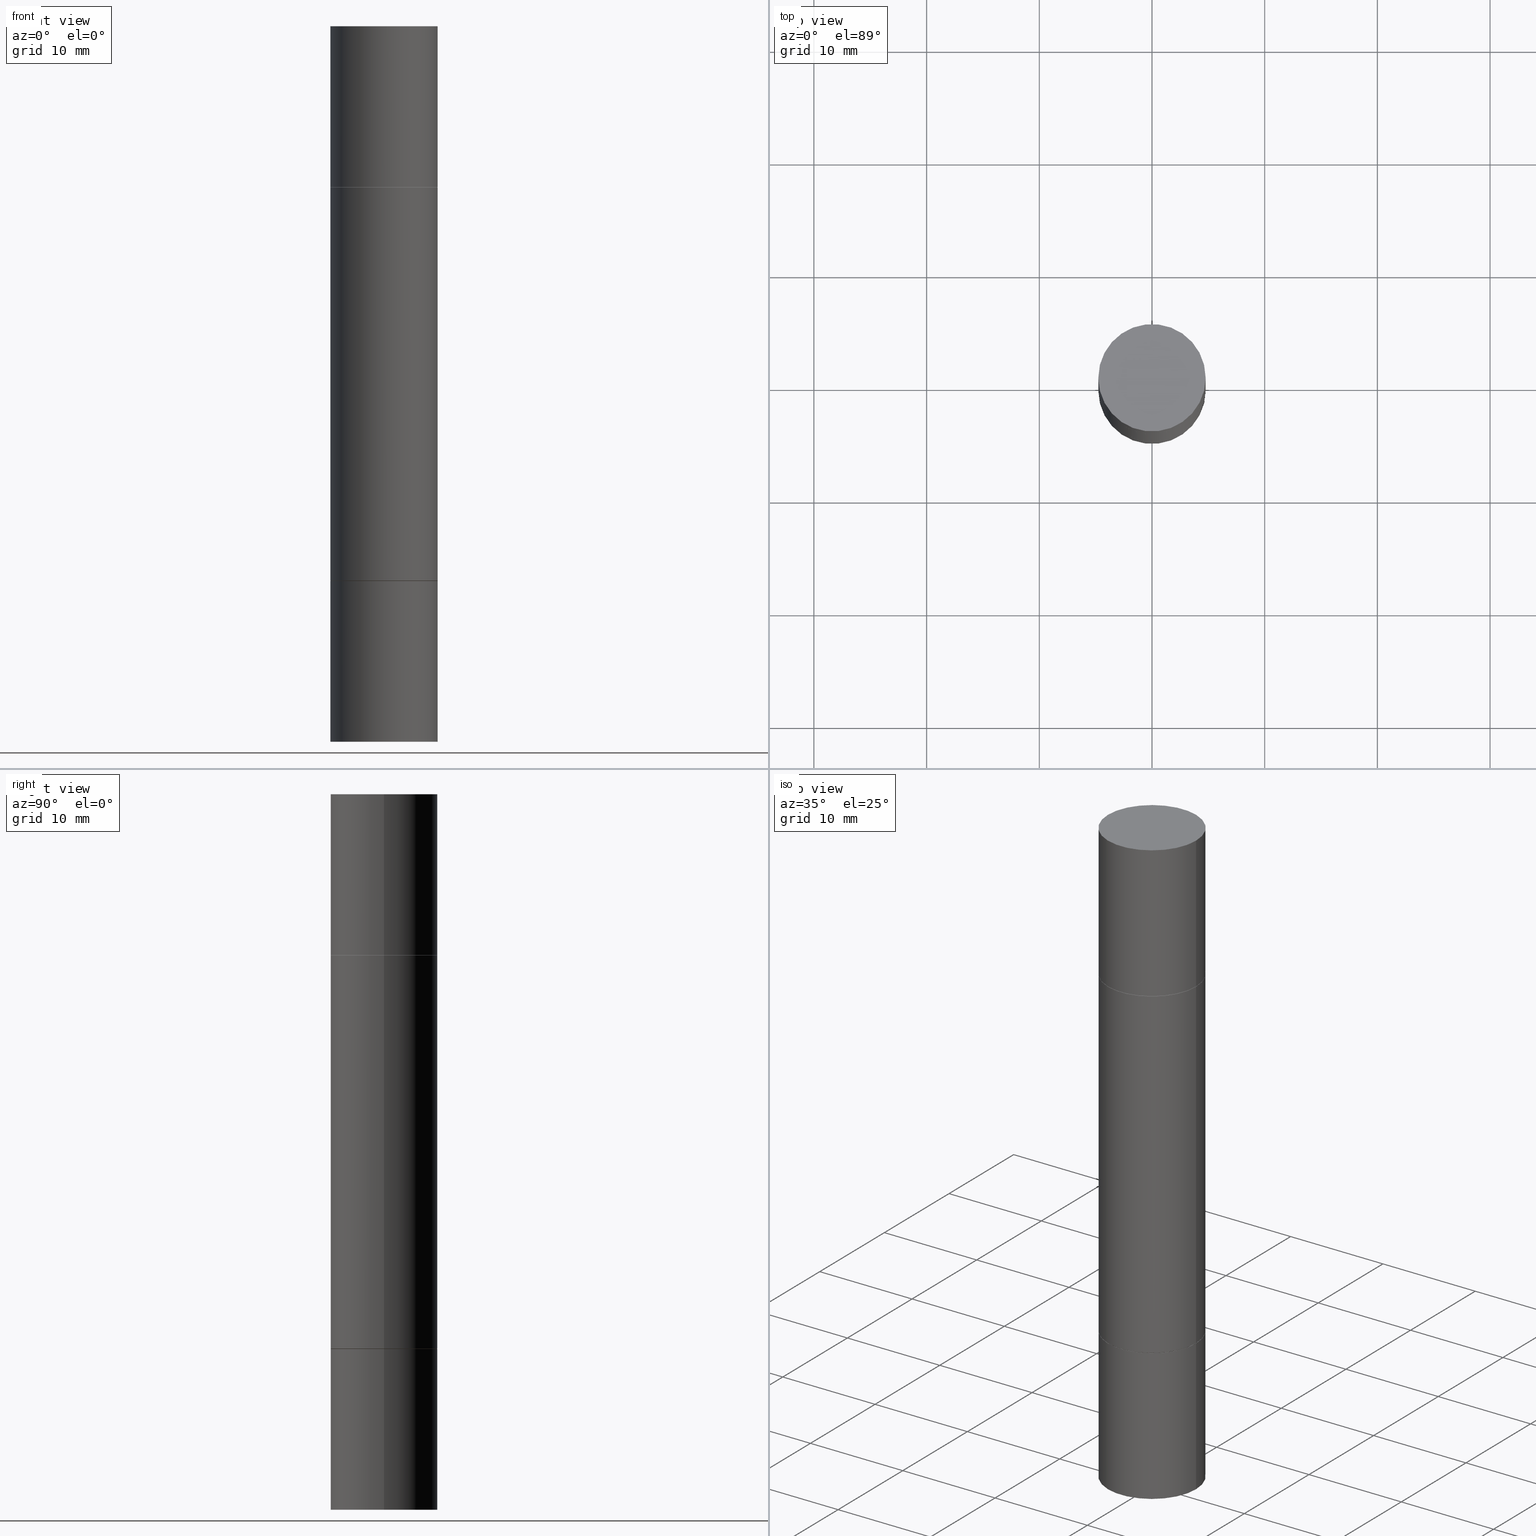
[diagram: canonical four-view strip — front | top / right | iso, engineering-drawing reading convention]
A machine part, canonical four-view strip (front | top / right | iso — engineering-drawing reading convention). The complete STEP part file that produces these views, byte-faithful:
ISO-10303-21;
HEADER;
FILE_DESCRIPTION (( 'STEP AP203' ),
    '1' );
FILE_NAME ('31333.STEP',
    '2024-03-04T15:41:38',
    ( '' ),
    ( '' ),
    'SwSTEP 2.0',
    'SolidWorks 2023',
    '' );
FILE_SCHEMA (( 'CONFIG_CONTROL_DESIGN' ));
ENDSEC;

DATA;
#1 = DIRECTION ( 'NONE',  ( -2.445468806185136877E-29, 3.491481338843145188E-15, 1.000000000000000000 ) ) ;
#2 = CIRCLE ( 'NONE', #232, 0.1875000000000000278 ) ;
#3 = EDGE_LOOP ( 'NONE', ( #544, #90, #595, #99 ) ) ;
#4 = APPROVAL ( #239, 'UNSPECIFIED' ) ;
#5 = DIRECTION ( 'NONE',  ( 2.445468806185136597E-29, 3.492890411551752677E-15, 1.000000000000000000 ) ) ;
#6 = VERTEX_POINT ( 'NONE', #543 ) ;
#7 = DIRECTION ( 'NONE',  ( 1.000000000000000000, -6.982962677686270655E-15, 0.000000000000000000 ) ) ;
#8 = DIRECTION ( 'NONE',  ( 1.000000000000000000, -6.982962677686266711E-15, 0.000000000000000000 ) ) ;
#9 = ORIENTED_EDGE ( 'NONE', *, *, #629, .F. ) ;
#10 = AXIS2_PLACEMENT_3D ( 'NONE', #573, #375, #309 ) ;
#11 = VECTOR ( 'NONE', #616, 39.37007874015748854 ) ;
#12 = ORIENTED_EDGE ( 'NONE', *, *, #74, .T. ) ;
#13 = PRODUCT_DEFINITION ( 'UNKNOWN', '', #157, #598 ) ;
#14 = EDGE_CURVE ( 'NONE', #410, #280, #380, .T. ) ;
#15 = DIRECTION ( 'NONE',  ( 2.438088387897960049E-29, -3.491481338843145188E-15, -1.000000000000000000 ) ) ;
#16 = ORIENTED_EDGE ( 'NONE', *, *, #437, .T. ) ;
#17 = AXIS2_PLACEMENT_3D ( 'NONE', #172, #412, #141 ) ;
#18 = CC_DESIGN_PERSON_AND_ORGANIZATION_ASSIGNMENT ( #343, #296, ( #157 ) ) ;
#19 = EDGE_CURVE ( 'NONE', #366, #313, #136, .T. ) ;
#20 = AXIS2_PLACEMENT_3D ( 'NONE', #676, #476, #112 ) ;
#21 = LINE ( 'NONE', #650, #374 ) ;
#22 = VERTEX_POINT ( 'NONE', #559 ) ;
#23 = LOCAL_TIME ( 10, 41, 38.00000000000000000, #655 ) ;
#24 = DIRECTION ( 'NONE',  ( 1.000000000000000000, -6.982962677686265922E-15, 4.876176775795935793E-29 ) ) ;
#25 = CARTESIAN_POINT ( 'NONE',  ( 4.739318546386794397E-29, -6.766490834678016045E-15, -1.937999999999999945 ) ) ;
#26 = ORIENTED_EDGE ( 'NONE', *, *, #19, .F. ) ;
#27 = CALENDAR_DATE ( 2024, 4, 3 ) ;
#28 = DIRECTION ( 'NONE',  ( 2.445468806185136597E-29, 3.492890411551752677E-15, 1.000000000000000000 ) ) ;
#29 = EDGE_CURVE ( 'NONE', #593, #514, #522, .T. ) ;
#30 = MECHANICAL_CONTEXT ( 'NONE', #117, 'mechanical' ) ;
#31 = CARTESIAN_POINT ( 'NONE',  ( -0.1875000000000000278, -7.444121313411457895E-15, -2.499999999999999556 ) ) ;
#32 = ORIENTED_EDGE ( 'NONE', *, *, #126, .F. ) ;
#33 = COORDINATED_UNIVERSAL_TIME_OFFSET ( 5, 0, .BEHIND. ) ;
#34 = DIRECTION ( 'NONE',  ( 1.000000000000000000, -6.982962677686265922E-15, 4.876176775795935793E-29 ) ) ;
#35 = ORIENTED_EDGE ( 'NONE', *, *, #437, .F. ) ;
#36 = ORIENTED_EDGE ( 'NONE', *, *, #41, .T. ) ;
#37 = CARTESIAN_POINT ( 'NONE',  ( -0.1875000000000000278, -6.415329461342752645E-15, -1.937999999999999945 ) ) ;
#38 = DIRECTION ( 'NONE',  ( 1.000000000000000000, -6.982962677686266711E-15, 0.000000000000000000 ) ) ;
#39 = AXIS2_PLACEMENT_3D ( 'NONE', #530, #151, #667 ) ;
#40 = ORGANIZATION ( 'UNSPECIFIED', 'UNSPECIFIED', '' ) ;
#41 = EDGE_CURVE ( 'NONE', #503, #410, #618, .T. ) ;
#42 = ORIENTED_EDGE ( 'NONE', *, *, #554, .F. ) ;
#43 = ADVANCED_FACE ( 'NONE', ( #87 ), #304, .T. ) ;
#44 = FACE_OUTER_BOUND ( 'NONE', #228, .T. ) ;
#45 = PLANE ( 'NONE',  #407 ) ;
#46 = CARTESIAN_POINT ( 'NONE',  ( -0.1875000000000000278, 3.066025098218802702E-16, 5.463695987328561936E-16 ) ) ;
#47 = CARTESIAN_POINT ( 'NONE',  ( -0.1875000000000000278, -6.783925862357143136E-16, -0.5629999999999997229 ) ) ;
#48 = SHAPE_DEFINITION_REPRESENTATION ( #606, #435 ) ;
#49 = DIRECTION ( 'NONE',  ( 2.445468806185136597E-29, 3.492890411551752677E-15, 1.000000000000000000 ) ) ;
#50 = CARTESIAN_POINT ( 'NONE',  ( 4.736873077580609355E-29, -1.964735960817877172E-15, -0.5629999999999997229 ) ) ;
#51 = AXIS2_PLACEMENT_3D ( 'NONE', #384, #166, #226 ) ;
#52 = CIRCLE ( 'NONE', #613, 0.1875000000000000278 ) ;
#53 = FACE_OUTER_BOUND ( 'NONE', #521, .T. ) ;
#54 = EDGE_LOOP ( 'NONE', ( #452, #568 ) ) ;
#55 = CARTESIAN_POINT ( 'NONE',  ( 4.739318546386794397E-29, -1.961243070406324635E-15, -0.5619999999999996110 ) ) ;
#56 = ORIENTED_EDGE ( 'NONE', *, *, #502, .F. ) ;
#57 = DIRECTION ( 'NONE',  ( -2.445468806185136597E-29, -3.492890411551752677E-15, -1.000000000000000000 ) ) ;
#58 = CC_DESIGN_PERSON_AND_ORGANIZATION_ASSIGNMENT ( #403, #189, ( #157 ) ) ;
#59 = PLANE ( 'NONE',  #382 ) ;
#60 = CLOSED_SHELL ( 'NONE', ( #142, #337, #458, #388, #389, #218, #638, #328 ) ) ;
#61 = AXIS2_PLACEMENT_3D ( 'NONE', #379, #325, #7 ) ;
#62 = EDGE_CURVE ( 'NONE', #161, #648, #591, .T. ) ;
#63 = ORIENTED_EDGE ( 'NONE', *, *, #270, .F. ) ;
#64 = DIRECTION ( 'NONE',  ( -1.000000000000000000, 6.982962677686265922E-15, -4.876176775795935793E-29 ) ) ;
#65 = ADVANCED_FACE ( 'NONE', ( #44 ), #336, .T. ) ;
#66 = ORIENTED_EDGE ( 'NONE', *, *, #584, .F. ) ;
#67 = AXIS2_PLACEMENT_3D ( 'NONE', #300, #393, #129 ) ;
#68 = VECTOR ( 'NONE', #1, 39.37007874015748143 ) ;
#69 = PLANE ( 'NONE',  #456 ) ;
#70 = ORIENTED_EDGE ( 'NONE', *, *, #434, .T. ) ;
#71 = ADVANCED_FACE ( 'NONE', ( #256 ), #179, .T. ) ;
#72 = DIRECTION ( 'NONE',  ( 2.445468806185136597E-29, 3.492890411551752677E-15, 1.000000000000000000 ) ) ;
#73 = EDGE_CURVE ( 'NONE', #275, #635, #200, .T. ) ;
#74 = EDGE_CURVE ( 'NONE', #490, #499, #252, .T. ) ;
#75 = PERSON_AND_ORGANIZATION_ROLE ( 'design_owner' ) ;
#76 = CARTESIAN_POINT ( 'NONE',  ( -0.1864999999999999714, -5.441328632485429205E-15, -1.937999999999999945 ) ) ;
#77 = DIRECTION ( 'NONE',  ( -1.000000000000000000, 6.982962677686265922E-15, -9.839502134516470631E-33 ) ) ;
#78 = CARTESIAN_POINT ( 'NONE',  ( 4.739318546386794397E-29, -1.961243070406324635E-15, -0.5619999999999996110 ) ) ;
#79 = AXIS2_PLACEMENT_3D ( 'NONE', #344, #549, #614 ) ;
#80 = DIRECTION ( 'NONE',  ( 1.000000000000000000, -6.982962677686270655E-15, 0.000000000000000000 ) ) ;
#81 = CONICAL_SURFACE ( 'NONE', #123, 0.1864999999999999714, 0.7853981633974311816 ) ;
#82 = VERTEX_POINT ( 'NONE', #445 ) ;
#83 = DATE_AND_TIME ( #27, #324 ) ;
#84 = LOCAL_TIME ( 10, 41, 38.00000000000000000, #134 ) ;
#85 = CYLINDRICAL_SURFACE ( 'NONE', #633, 0.1874999999999999167 ) ;
#86 = APPROVAL_STATUS ( 'not_yet_approved' ) ;
#87 = FACE_OUTER_BOUND ( 'NONE', #260, .T. ) ;
#88 = CARTESIAN_POINT ( 'NONE',  ( 0.000000000000000000, -8.730464687993621641E-15, -2.499999999999999556 ) ) ;
#89 = FACE_OUTER_BOUND ( 'NONE', #460, .T. ) ;
#90 = ORIENTED_EDGE ( 'NONE', *, *, #29, .T. ) ;
#91 = DIRECTION ( 'NONE',  ( -2.445468806185136597E-29, -3.492890411551752677E-15, -1.000000000000000000 ) ) ;
#92 = DIRECTION ( 'NONE',  ( -2.445468806185136597E-29, -3.492890411551752677E-15, -1.000000000000000000 ) ) ;
#93 = ADVANCED_FACE ( 'NONE', ( #400 ), #651, .T. ) ;
#94 = ADVANCED_FACE ( 'NONE', ( #97 ), #381, .T. ) ;
#95 = ORIENTED_EDGE ( 'NONE', *, *, #601, .F. ) ;
#96 = CLOSED_SHELL ( 'NONE', ( #65, #185, #652, #93 ) ) ;
#97 = FACE_OUTER_BOUND ( 'NONE', #138, .T. ) ;
#98 = DIRECTION ( 'NONE',  ( -1.000000000000000000, 6.982962677686265922E-15, -9.839502134516470631E-33 ) ) ;
#99 = ORIENTED_EDGE ( 'NONE', *, *, #587, .F. ) ;
#100 = LINE ( 'NONE', #107, #169 ) ;
#101 = EDGE_LOOP ( 'NONE', ( #331, #465, #660, #464 ) ) ;
#102 = CARTESIAN_POINT ( 'NONE',  ( 0.1864999999999999714, -3.263565609794813629E-15, -0.5619999999999996110 ) ) ;
#103 = ORIENTED_EDGE ( 'NONE', *, *, #582, .T. ) ;
#104 = DIRECTION ( 'NONE',  ( 1.000000000000000000, -6.982962677686269077E-15, 0.000000000000000000 ) ) ;
#105 = VECTOR ( 'NONE', #419, 39.37007874015748143 ) ;
#106 = ORIENTED_EDGE ( 'NONE', *, *, #643, .F. ) ;
#107 = CARTESIAN_POINT ( 'NONE',  ( -0.1875000000000000278, 1.332267629550188046E-15, -9.223003294227947991E-30 ) ) ;
#108 = AXIS2_PLACEMENT_3D ( 'NONE', #25, #238, #182 ) ;
#109 =( GEOMETRIC_REPRESENTATION_CONTEXT ( 3 ) GLOBAL_UNCERTAINTY_ASSIGNED_CONTEXT ( ( #183 ) ) GLOBAL_UNIT_ASSIGNED_CONTEXT ( ( #302, #193, #510 ) ) REPRESENTATION_CONTEXT ( 'NONE', 'WORKASPACE' ) );
#110 = CARTESIAN_POINT ( 'NONE',  ( 0.1875000000000000278, -1.309305502066175008E-15, 9.142831454617381013E-30 ) ) ;
#111 = MANIFOLD_SOLID_BREP ( 'Mirror1[4]', #659 ) ;
#112 = DIRECTION ( 'NONE',  ( 1.000000000000000000, -6.982962677686269077E-15, 0.000000000000000000 ) ) ;
#113 = DIMENSIONAL_EXPONENTS ( 1.000000000000000000, 0.000000000000000000, 0.000000000000000000, 0.000000000000000000, 0.000000000000000000, 0.000000000000000000, 0.000000000000000000 ) ;
#114 = CIRCLE ( 'NONE', #586, 0.1864999999999999714 ) ;
#115 = CARTESIAN_POINT ( 'NONE',  ( 6.113672015462842613E-29, 1.761340885760521790E-18, 5.463695987328526437E-16 ) ) ;
#116 = ADVANCED_FACE ( 'NONE', ( #454 ), #85, .T. ) ;
#117 = APPLICATION_CONTEXT ( 'configuration controlled 3d designs of mechanical parts and assemblies' ) ;
#118 = ORIENTED_EDGE ( 'NONE', *, *, #617, .F. ) ;
#119 = FACE_OUTER_BOUND ( 'NONE', #547, .T. ) ;
#120 = ORIENTED_EDGE ( 'NONE', *, *, #181, .T. ) ;
#121 = DIRECTION ( 'NONE',  ( 1.000000000000000000, -6.982962677686266711E-15, 0.000000000000000000 ) ) ;
#122 = AXIS2_PLACEMENT_3D ( 'NONE', #461, #545, #77 ) ;
#123 = AXIS2_PLACEMENT_3D ( 'NONE', #78, #92, #241 ) ;
#124 = CARTESIAN_POINT ( 'NONE',  ( 6.113672015462842613E-29, 1.761340885760521790E-18, 5.463695987328526437E-16 ) ) ;
#125 = VECTOR ( 'NONE', #170, 39.37007874015748143 ) ;
#126 = EDGE_CURVE ( 'NONE', #371, #410, #2, .T. ) ;
#127 = CC_DESIGN_PERSON_AND_ORGANIZATION_ASSIGNMENT ( #186, #75, ( #175 ) ) ;
#128 = CARTESIAN_POINT ( 'NONE',  ( 4.739318546386794397E-29, -6.766490834678016045E-15, -1.937999999999999945 ) ) ;
#129 = DIRECTION ( 'NONE',  ( 1.000000000000000000, -6.982962677686266711E-15, 0.000000000000000000 ) ) ;
#130 = PERSON_AND_ORGANIZATION ( #391, #40 ) ;
#131 = FACE_OUTER_BOUND ( 'NONE', #192, .T. ) ;
#132 = CARTESIAN_POINT ( 'NONE',  ( 0.000000000000000000, -8.730464687993621641E-15, -2.499999999999999556 ) ) ;
#133 = CARTESIAN_POINT ( 'NONE',  ( 4.739318546386794397E-29, -6.766490834678016045E-15, -1.937999999999999945 ) ) ;
#134 = COORDINATED_UNIVERSAL_TIME_OFFSET ( 5, 0, .BEHIND. ) ;
#135 = DIRECTION ( 'NONE',  ( 1.000000000000000000, -6.982962677686266711E-15, 0.000000000000000000 ) ) ;
#136 = CIRCLE ( 'NONE', #17, 0.1875000000000000278 ) ;
#137 = CIRCLE ( 'NONE', #646, 0.1875000000000000278 ) ;
#138 = EDGE_LOOP ( 'NONE', ( #35, #36, #536, #66 ) ) ;
#139 = PERSON_AND_ORGANIZATION ( #391, #40 ) ;
#140 = CIRCLE ( 'NONE', #647, 0.1875000000000000278 ) ;
#141 = DIRECTION ( 'NONE',  ( 1.000000000000000000, -6.982962677686266711E-15, 0.000000000000000000 ) ) ;
#142 = ADVANCED_FACE ( 'NONE', ( #404 ), #531, .T. ) ;
#143 = ORIENTED_EDGE ( 'NONE', *, *, #230, .T. ) ;
#144 = CARTESIAN_POINT ( 'NONE',  ( 0.1875000000000000278, -1.307544161180414563E-15, 5.463695987328526437E-16 ) ) ;
#145 = CARTESIAN_POINT ( 'NONE',  ( -0.1864999999999999714, -6.817601938219341781E-16, -0.5619999999999996110 ) ) ;
#146 = AXIS2_PLACEMENT_3D ( 'NONE', #414, #636, #159 ) ;
#147 = DIRECTION ( 'NONE',  ( 1.000000000000000000, -6.982962677686265922E-15, 4.876176775795935793E-29 ) ) ;
#148 = CIRCLE ( 'NONE', #551, 0.1875000000000000278 ) ;
#149 = ADVANCED_FACE ( 'NONE', ( #610 ), #556, .T. ) ;
#150 = DIRECTION ( 'NONE',  ( -0.000000000000000000, -3.492185875197449130E-15, -1.000000000000000000 ) ) ;
#151 = DIRECTION ( 'NONE',  ( -2.445468806185136597E-29, -3.492890411551752677E-15, -1.000000000000000000 ) ) ;
#152 = ORIENTED_EDGE ( 'NONE', *, *, #73, .F. ) ;
#153 = FACE_OUTER_BOUND ( 'NONE', #208, .T. ) ;
#154 = CIRCLE ( 'NONE', #523, 0.1875000000000000278 ) ;
#155 = VERTEX_POINT ( 'NONE', #144 ) ;
#156 = DIRECTION ( 'NONE',  ( 1.000000000000000000, -6.982962677686269077E-15, 0.000000000000000000 ) ) ;
#157 = PRODUCT_DEFINITION_FORMATION_WITH_SPECIFIED_SOURCE ( 'ANY', '', #175, .NOT_KNOWN. ) ;
#158 = ADVANCED_FACE ( 'NONE', ( #53 ), #59, .F. ) ;
#159 = DIRECTION ( 'NONE',  ( 0.000000000000000000, 1.000000000000000000, -2.913971193241881950E-15 ) ) ;
#160 = DIRECTION ( 'NONE',  ( 1.000000000000000000, -6.982962677686265922E-15, 0.000000000000000000 ) ) ;
#161 = VERTEX_POINT ( 'NONE', #206 ) ;
#162 = EDGE_CURVE ( 'NONE', #82, #155, #137, .T. ) ;
#163 = VECTOR ( 'NONE', #507, 39.37007874015748143 ) ;
#164 = AXIS2_PLACEMENT_3D ( 'NONE', #665, #187, #248 ) ;
#165 = ORIENTED_EDGE ( 'NONE', *, *, #629, .T. ) ;
#166 = DIRECTION ( 'NONE',  ( -2.445468806185136597E-29, 3.491481338843145583E-15, 1.000000000000000000 ) ) ;
#167 = ORIENTED_EDGE ( 'NONE', *, *, #587, .T. ) ;
#168 =( LENGTH_UNIT ( ) NAMED_UNIT ( * ) SI_UNIT ( $, .METRE. ) );
#169 = VECTOR ( 'NONE', #317, 39.37007874015748143 ) ;
#170 = DIRECTION ( 'NONE',  ( -2.445468806185136877E-29, -3.492890411551753071E-15, -1.000000000000000000 ) ) ;
#171 = AXIS2_PLACEMENT_3D ( 'NONE', #340, #439, #645 ) ;
#172 = CARTESIAN_POINT ( 'NONE',  ( 4.739318546386794397E-29, -1.961243070406324635E-15, -0.5619999999999996110 ) ) ;
#173 = CARTESIAN_POINT ( 'NONE',  ( 6.113672015462842613E-29, -8.728703347107864943E-15, -2.500000000000000000 ) ) ;
#174 = EDGE_CURVE ( 'NONE', #299, #490, #249, .T. ) ;
#175 = PRODUCT ( '31333', '31333', '', ( #30 ) ) ;
#176 = DATE_AND_TIME ( #402, #664 ) ;
#177 = LINE ( 'NONE', #658, #674 ) ;
#178 = DATE_TIME_ROLE ( 'creation_date' ) ;
#179 = PLANE ( 'NONE',  #122 ) ;
#180 = APPROVAL_ROLE ( '' ) ;
#181 = EDGE_CURVE ( 'NONE', #308, #623, #532, .T. ) ;
#182 = DIRECTION ( 'NONE',  ( 1.000000000000000000, -6.982962677686266711E-15, 0.000000000000000000 ) ) ;
#183 = UNCERTAINTY_MEASURE_WITH_UNIT (LENGTH_MEASURE( 1.000000000000000082E-05 ), #302, 'distance_accuracy_value', 'NONE');
#184 = CARTESIAN_POINT ( 'NONE',  ( -0.1864999999999999714, -6.817601938219341781E-16, -0.5619999999999996110 ) ) ;
#185 = ADVANCED_FACE ( 'NONE', ( #588 ), #69, .T. ) ;
#186 = PERSON_AND_ORGANIZATION ( #391, #40 ) ;
#187 = DIRECTION ( 'NONE',  ( 2.438088387897960049E-29, -3.491481338843145188E-15, -1.000000000000000000 ) ) ;
#188 = AXIS2_PLACEMENT_3D ( 'NONE', #477, #274, #257 ) ;
#189 = PERSON_AND_ORGANIZATION_ROLE ( 'creator' ) ;
#190 = DIRECTION ( 'NONE',  ( -1.000000000000000000, 6.982962677686265922E-15, -9.839502134516470631E-33 ) ) ;
#191 = ORIENTED_EDGE ( 'NONE', *, *, #582, .F. ) ;
#192 = EDGE_LOOP ( 'NONE', ( #262, #26 ) ) ;
#193 =( NAMED_UNIT ( * ) PLANE_ANGLE_UNIT ( ) SI_UNIT ( $, .RADIAN. ) );
#194 = LINE ( 'NONE', #76, #11 ) ;
#195 = DIRECTION ( 'NONE',  ( -2.445468806185136597E-29, 3.491481338843145583E-15, 1.000000000000000000 ) ) ;
#196 = CARTESIAN_POINT ( 'NONE',  ( 0.1875000000000000278, -8.072304855405348046E-15, -1.936999999999999833 ) ) ;
#197 = DIRECTION ( 'NONE',  ( -2.438088387897960049E-29, 3.491481338843145188E-15, 1.000000000000000000 ) ) ;
#198 = FACE_OUTER_BOUND ( 'NONE', #608, .T. ) ;
#199 = ORIENTED_EDGE ( 'NONE', *, *, #643, .T. ) ;
#200 = CIRCLE ( 'NONE', #565, 0.1875000000000000278 ) ;
#201 = CIRCLE ( 'NONE', #592, 0.1864999999999999714 ) ;
#202 = DIRECTION ( 'NONE',  ( 1.000000000000000000, -6.982962677686266711E-15, 0.000000000000000000 ) ) ;
#203 = CIRCLE ( 'NONE', #108, 0.1875000000000000278 ) ;
#204 = ORIENTED_EDGE ( 'NONE', *, *, #675, .T. ) ;
#205 = CARTESIAN_POINT ( 'NONE',  ( -0.1864999999999999714, -6.800763900288241472E-16, -0.5619999999999996110 ) ) ;
#206 = CARTESIAN_POINT ( 'NONE',  ( 0.1875000000000000278, -8.075796336744191053E-15, -1.937999999999999945 ) ) ;
#207 = FACE_OUTER_BOUND ( 'NONE', #101, .T. ) ;
#208 = EDGE_LOOP ( 'NONE', ( #527, #12, #320, #118 ) ) ;
#209 = CARTESIAN_POINT ( 'NONE',  ( 3.056836007731420185E-29, -4.364351673553931682E-15, -1.249999999999999778 ) ) ;
#210 = ORIENTED_EDGE ( 'NONE', *, *, #428, .F. ) ;
#211 = ORIENTED_EDGE ( 'NONE', *, *, #594, .T. ) ;
#212 = DIRECTION ( 'NONE',  ( -2.445468806185136597E-29, -3.492890411551752677E-15, -1.000000000000000000 ) ) ;
#213 = EDGE_CURVE ( 'NONE', #490, #299, #114, .T. ) ;
#214 = EDGE_CURVE ( 'NONE', #411, #499, #291, .T. ) ;
#215 = CIRCLE ( 'NONE', #146, 0.1874999999999999167 ) ;
#216 = CYLINDRICAL_SURFACE ( 'NONE', #485, 0.1875000000000000278 ) ;
#217 = AXIS2_PLACEMENT_3D ( 'NONE', #596, #286, #557 ) ;
#218 = ADVANCED_FACE ( 'NONE', ( #222 ), #640, .T. ) ;
#219 = CARTESIAN_POINT ( 'NONE',  ( 4.739318546386794397E-29, -1.961243070406324635E-15, -0.5619999999999996110 ) ) ;
#220 = EDGE_CURVE ( 'NONE', #635, #275, #672, .T. ) ;
#221 = ORIENTED_EDGE ( 'NONE', *, *, #415, .T. ) ;
#222 = FACE_OUTER_BOUND ( 'NONE', #369, .T. ) ;
#223 = VECTOR ( 'NONE', #459, 39.37007874015748143 ) ;
#224 = AXIS2_PLACEMENT_3D ( 'NONE', #124, #487, #160 ) ;
#225 = ORIENTED_EDGE ( 'NONE', *, *, #502, .T. ) ;
#226 = DIRECTION ( 'NONE',  ( 1.000000000000000000, -6.982962677686266711E-15, 0.000000000000000000 ) ) ;
#227 = CARTESIAN_POINT ( 'NONE',  ( -0.1875000000000000278, -7.444121313411457895E-15, -2.499999999999999556 ) ) ;
#228 = EDGE_LOOP ( 'NONE', ( #441, #627, #574, #258 ) ) ;
#229 = CARTESIAN_POINT ( 'NONE',  ( 0.1875000000000000278, -3.270548572472500038E-15, -0.5619999999999996110 ) ) ;
#230 = EDGE_CURVE ( 'NONE', #313, #366, #154, .T. ) ;
#231 = EDGE_LOOP ( 'NONE', ( #244, #305, #390, #438 ) ) ;
#232 = AXIS2_PLACEMENT_3D ( 'NONE', #356, #28, #240 ) ;
#233 = LINE ( 'NONE', #552, #443 ) ;
#234 = CONICAL_SURFACE ( 'NONE', #217, 0.1864999999999999714, 0.7853981633974311816 ) ;
#235 = DIRECTION ( 'NONE',  ( -2.445468806185136597E-29, 3.491481338843145583E-15, 1.000000000000000000 ) ) ;
#236 = DIRECTION ( 'NONE',  ( -2.445468806185136597E-29, 3.491481338843145583E-15, 1.000000000000000000 ) ) ;
#237 = PERSON_AND_ORGANIZATION_ROLE ( 'creator' ) ;
#238 = DIRECTION ( 'NONE',  ( -2.445468806185136597E-29, 3.491481338843145583E-15, 1.000000000000000000 ) ) ;
#239 = APPROVAL_STATUS ( 'not_yet_approved' ) ;
#240 = DIRECTION ( 'NONE',  ( 1.000000000000000000, -6.982962677686266711E-15, 0.000000000000000000 ) ) ;
#241 = DIRECTION ( 'NONE',  ( 1.000000000000000000, -6.982962677686269077E-15, 0.000000000000000000 ) ) ;
#242 = EDGE_CURVE ( 'NONE', #514, #593, #539, .T. ) ;
#243 = CARTESIAN_POINT ( 'NONE',  ( -0.1874999999999999722, -3.078008298971767937E-15, -1.936999999999999833 ) ) ;
#244 = ORIENTED_EDGE ( 'NONE', *, *, #74, .F. ) ;
#245 = SECURITY_CLASSIFICATION_LEVEL ( 'unclassified' ) ;
#246 = CARTESIAN_POINT ( 'NONE',  ( 1.309305502066236145E-15, 0.1874999999999999722, 0.000000000000000000 ) ) ;
#247 = APPROVAL_DATE_TIME ( #176, #491 ) ;
#248 = DIRECTION ( 'NONE',  ( -1.000000000000000000, 6.982962677686265922E-15, -4.876176775795935793E-29 ) ) ;
#249 = CIRCLE ( 'NONE', #346, 0.1864999999999999714 ) ;
#250 = LOCAL_TIME ( 10, 41, 38.00000000000000000, #33 ) ;
#251 = ORIENTED_EDGE ( 'NONE', *, *, #334, .F. ) ;
#252 = LINE ( 'NONE', #184, #277 ) ;
#253 = DIRECTION ( 'NONE',  ( -2.445468806185136597E-29, 3.491481338843145583E-15, 1.000000000000000000 ) ) ;
#254 = ORIENTED_EDGE ( 'NONE', *, *, #214, .F. ) ;
#255 = ADVANCED_FACE ( 'NONE', ( #357 ), #81, .T. ) ;
#256 = FACE_OUTER_BOUND ( 'NONE', #311, .T. ) ;
#257 = DIRECTION ( 'NONE',  ( 1.000000000000000000, -6.982962677686265922E-15, 9.839502134516470631E-33 ) ) ;
#258 = ORIENTED_EDGE ( 'NONE', *, *, #401, .F. ) ;
#259 = PLANE ( 'NONE',  #315 ) ;
#260 = EDGE_LOOP ( 'NONE', ( #95, #120, #413, #63 ) ) ;
#261 = CARTESIAN_POINT ( 'NONE',  ( -0.1875000000000000278, -6.783925862357143136E-16, -0.5629999999999997229 ) ) ;
#262 = ORIENTED_EDGE ( 'NONE', *, *, #230, .F. ) ;
#263 = CARTESIAN_POINT ( 'NONE',  ( 4.739318546386794397E-29, -1.961243070406324635E-15, -0.5619999999999996110 ) ) ;
#264 = AXIS2_PLACEMENT_3D ( 'NONE', #448, #656, #297 ) ;
#265 = CARTESIAN_POINT ( 'NONE',  ( 1.309305502066222340E-15, 0.1874999999999980294, -0.5620000000000004992 ) ) ;
#266 = CIRCLE ( 'NONE', #533, 0.1864999999999999714 ) ;
#267 = DIRECTION ( 'NONE',  ( 1.000000000000000000, -6.982962677686266711E-15, 0.000000000000000000 ) ) ;
#268 = ORIENTED_EDGE ( 'NONE', *, *, #242, .F. ) ;
#269 = CARTESIAN_POINT ( 'NONE',  ( 0.1875000000000000278, -3.270548572472500038E-15, -0.5619999999999996110 ) ) ;
#270 = EDGE_CURVE ( 'NONE', #22, #619, #301, .T. ) ;
#271 = LINE ( 'NONE', #473, #361 ) ;
#272 = ORIENTED_EDGE ( 'NONE', *, *, #446, .F. ) ;
#273 = FACE_OUTER_BOUND ( 'NONE', #316, .T. ) ;
#274 = DIRECTION ( 'NONE',  ( -2.438088387897959769E-29, -3.492890411551753071E-15, -1.000000000000000000 ) ) ;
#275 = VERTEX_POINT ( 'NONE', #196 ) ;
#276 = CARTESIAN_POINT ( 'NONE',  ( 0.000000000000000000, 0.000000000000000000, -1.249999999999999778 ) ) ;
#277 = VECTOR ( 'NONE', #409, 39.37007874015748854 ) ;
#278 = ADVANCED_FACE ( 'NONE', ( #494 ), #449, .T. ) ;
#279 = CARTESIAN_POINT ( 'NONE',  ( 4.739318546386794397E-29, -1.961243070406324635E-15, -0.5619999999999996110 ) ) ;
#280 = VERTEX_POINT ( 'NONE', #306 ) ;
#281 = VERTEX_POINT ( 'NONE', #678 ) ;
#282 = CONICAL_SURFACE ( 'NONE', #663, 0.1864999999999999714, 0.7853981633974311816 ) ;
#283 = APPROVAL_PERSON_ORGANIZATION ( #406, #491, #180 ) ;
#284 = DIRECTION ( 'NONE',  ( 1.000000000000000000, -6.982962677686265922E-15, 0.000000000000000000 ) ) ;
#285 = ADVANCED_FACE ( 'NONE', ( #207 ), #517, .T. ) ;
#286 = DIRECTION ( 'NONE',  ( -2.445468806185136597E-29, 3.491481338843145583E-15, 1.000000000000000000 ) ) ;
#287 = EDGE_LOOP ( 'NONE', ( #268, #537 ) ) ;
#288 = CARTESIAN_POINT ( 'NONE',  ( -0.1874999999999999167, -7.444121313411459473E-15, -2.499999999999999556 ) ) ;
#289 = CARTESIAN_POINT ( 'NONE',  ( 0.1875000000000000278, -1.003977019005979665E-14, -2.499999999999999556 ) ) ;
#290 = ORIENTED_EDGE ( 'NONE', *, *, #220, .F. ) ;
#291 = CIRCLE ( 'NONE', #392, 0.1875000000000000278 ) ;
#292 = CIRCLE ( 'NONE', #385, 0.1875000000000000278 ) ;
#293 = ORIENTED_EDGE ( 'NONE', *, *, #553, .F. ) ;
#294 = APPROVAL_ROLE ( '' ) ;
#295 = CARTESIAN_POINT ( 'NONE',  ( 0.000000000000000000, -8.730464687993621641E-15, -2.499999999999999556 ) ) ;
#296 = PERSON_AND_ORGANIZATION_ROLE ( 'design_supplier' ) ;
#297 = DIRECTION ( 'NONE',  ( 1.000000000000000000, -6.982962677686269077E-15, 0.000000000000000000 ) ) ;
#298 = DIRECTION ( 'NONE',  ( -2.445468806185136597E-29, -3.492890411551752677E-15, -1.000000000000000000 ) ) ;
#299 = VERTEX_POINT ( 'NONE', #102 ) ;
#300 = CARTESIAN_POINT ( 'NONE',  ( 6.113672015462842613E-29, -8.728703347107864943E-15, -2.500000000000000000 ) ) ;
#301 = LINE ( 'NONE', #289, #163 ) ;
#302 =( CONVERSION_BASED_UNIT ( 'INCH', #345 ) LENGTH_UNIT ( ) NAMED_UNIT ( #113 ) );
#303 = CIRCLE ( 'NONE', #567, 0.1875000000000000278 ) ;
#304 = CYLINDRICAL_SURFACE ( 'NONE', #632, 0.1875000000000000278 ) ;
#305 = ORIENTED_EDGE ( 'NONE', *, *, #174, .F. ) ;
#306 = CARTESIAN_POINT ( 'NONE',  ( -0.1874999999999999167, -1.878200442603741470E-15, -1.249999999999999778 ) ) ;
#307 = FACE_OUTER_BOUND ( 'NONE', #54, .T. ) ;
#308 = VERTEX_POINT ( 'NONE', #46 ) ;
#309 = DIRECTION ( 'NONE',  ( 1.000000000000000000, -6.982962677686265922E-15, 9.839502134516470631E-33 ) ) ;
#310 = ADVANCED_FACE ( 'NONE', ( #273 ), #259, .F. ) ;
#311 = EDGE_LOOP ( 'NONE', ( #225, #432 ) ) ;
#312 = LINE ( 'NONE', #110, #68 ) ;
#313 = VERTEX_POINT ( 'NONE', #269 ) ;
#314 = ADVANCED_FACE ( 'NONE', ( #421 ), #630, .F. ) ;
#315 = AXIS2_PLACEMENT_3D ( 'NONE', #265, #564, #98 ) ;
#316 = EDGE_LOOP ( 'NONE', ( #210, #293 ) ) ;
#317 = DIRECTION ( 'NONE',  ( -2.445468806185136877E-29, 3.491481338843145188E-15, 1.000000000000000000 ) ) ;
#318 = EDGE_LOOP ( 'NONE', ( #455, #16 ) ) ;
#319 = FACE_OUTER_BOUND ( 'NONE', #483, .T. ) ;
#320 = ORIENTED_EDGE ( 'NONE', *, *, #554, .T. ) ;
#321 = LINE ( 'NONE', #620, #423 ) ;
#322 = APPROVAL ( #86, 'UNSPECIFIED' ) ;
#323 = CONICAL_SURFACE ( 'NONE', #20, 0.1864999999999999714, 0.7853981633974311816 ) ;
#324 = LOCAL_TIME ( 10, 41, 38.00000000000000000, #500 ) ;
#325 = DIRECTION ( 'NONE',  ( -2.445468806185136597E-29, -3.492890411551752677E-15, -1.000000000000000000 ) ) ;
#326 = DIRECTION ( 'NONE',  ( -2.445468806185136877E-29, -3.492890411551753071E-15, -1.000000000000000000 ) ) ;
#327 = AXIS2_PLACEMENT_3D ( 'NONE', #506, #195, #38 ) ;
#328 = ADVANCED_FACE ( 'NONE', ( #513 ), #45, .F. ) ;
#329 = AXIS2_PLACEMENT_3D ( 'NONE', #132, #341, #80 ) ;
#330 = DIRECTION ( 'NONE',  ( 1.000000000000000000, -6.982962677686265922E-15, 0.000000000000000000 ) ) ;
#331 = ORIENTED_EDGE ( 'NONE', *, *, #181, .F. ) ;
#332 = MANIFOLD_SOLID_BREP ( 'Mirror1[3]', #372 ) ;
#333 = MANIFOLD_SOLID_BREP ( 'Combine1', #60 ) ;
#334 = EDGE_CURVE ( 'NONE', #6, #503, #442, .T. ) ;
#335 = DIRECTION ( 'NONE',  ( 1.000000000000000000, -6.982962677686269077E-15, 0.000000000000000000 ) ) ;
#336 = CYLINDRICAL_SURFACE ( 'NONE', #611, 0.1875000000000000278 ) ;
#337 = ADVANCED_FACE ( 'NONE', ( #319 ), #528, .T. ) ;
#338 = EDGE_CURVE ( 'NONE', #593, #648, #100, .T. ) ;
#339 = APPROVAL_STATUS ( 'not_yet_approved' ) ;
#340 = CARTESIAN_POINT ( 'NONE',  ( 1.309305502066222340E-15, 0.1874999999999980294, -0.5620000000000004992 ) ) ;
#341 = DIRECTION ( 'NONE',  ( -2.445468806185136597E-29, -3.492890411551752677E-15, -1.000000000000000000 ) ) ;
#342 = ORIENTED_EDGE ( 'NONE', *, *, #14, .T. ) ;
#343 = PERSON_AND_ORGANIZATION ( #391, #40 ) ;
#344 = CARTESIAN_POINT ( 'NONE',  ( 4.739318546386794397E-29, -1.961243070406324635E-15, -0.5619999999999996110 ) ) ;
#345 = LENGTH_MEASURE_WITH_UNIT ( LENGTH_MEASURE( 0.02539999999999999897 ), #168 );
#346 = AXIS2_PLACEMENT_3D ( 'NONE', #427, #5, #583 ) ;
#347 = VECTOR ( 'NONE', #590, 39.37007874015748143 ) ;
#348 = EDGE_CURVE ( 'NONE', #155, #313, #624, .T. ) ;
#349 = EDGE_LOOP ( 'NONE', ( #525, #342, #577, #417 ) ) ;
#350 = DATE_AND_TIME ( #548, #84 ) ;
#351 = DIRECTION ( 'NONE',  ( 1.000000000000000000, -6.982962677686266711E-15, 0.000000000000000000 ) ) ;
#352 = DIRECTION ( 'NONE',  ( 1.000000000000000000, 0.000000000000000000, 0.000000000000000000 ) ) ;
#353 = DIRECTION ( 'NONE',  ( 0.7071067811865353603, -7.407546758114202791E-15, -0.7071067811865595631 ) ) ;
#354 = CARTESIAN_POINT ( 'NONE',  ( 0.1874999999999999167, -4.473849319252078646E-15, -1.249999999999999778 ) ) ;
#355 = EDGE_LOOP ( 'NONE', ( #9, #56, #602, #143 ) ) ;
#356 = CARTESIAN_POINT ( 'NONE',  ( 4.736873077580609355E-29, -1.964735960817877172E-15, -0.5629999999999997229 ) ) ;
#357 = FACE_OUTER_BOUND ( 'NONE', #668, .T. ) ;
#358 = CARTESIAN_POINT ( 'NONE',  ( 0.000000000000000000, 0.000000000000000000, 0.000000000000000000 ) ) ;
#359 = ORIENTED_EDGE ( 'NONE', *, *, #653, .T. ) ;
#360 = AXIS2_PLACEMENT_3D ( 'NONE', #604, #501, #34 ) ;
#361 = VECTOR ( 'NONE', #581, 39.37007874015748143 ) ;
#362 = DIRECTION ( 'NONE',  ( -2.445468806185136597E-29, -3.492890411551752677E-15, -1.000000000000000000 ) ) ;
#363 = DIRECTION ( 'NONE',  ( 0.000000000000000000, 1.000000000000000000, -2.913971193241881950E-15 ) ) ;
#364 = ORIENTED_EDGE ( 'NONE', *, *, #348, .F. ) ;
#365 = DIRECTION ( 'NONE',  ( 1.000000000000000000, -6.982962677686266711E-15, 0.000000000000000000 ) ) ;
#366 = VERTEX_POINT ( 'NONE', #416 ) ;
#367 = CARTESIAN_POINT ( 'NONE',  ( 0.1875000000000000278, -1.003977019005979665E-14, -2.499999999999999556 ) ) ;
#368 = PRODUCT_RELATED_PRODUCT_CATEGORY ( 'detail', '', ( #175 ) ) ;
#369 = EDGE_LOOP ( 'NONE', ( #272, #254, #199, #383 ) ) ;
#370 = CARTESIAN_POINT ( 'NONE',  ( 6.113672015462842613E-29, 1.761340885760521790E-18, 5.463695987328526437E-16 ) ) ;
#371 = VERTEX_POINT ( 'NONE', #520 ) ;
#372 = CLOSED_SHELL ( 'NONE', ( #43, #149, #310, #285 ) ) ;
#373 = AXIS2_PLACEMENT_3D ( 'NONE', #50, #580, #526 ) ;
#374 = VECTOR ( 'NONE', #397, 39.37007874015748854 ) ;
#375 = DIRECTION ( 'NONE',  ( -2.438088387897959769E-29, -3.492890411551753071E-15, -1.000000000000000000 ) ) ;
#376 = FACE_OUTER_BOUND ( 'NONE', #231, .T. ) ;
#377 = ADVANCED_FACE ( 'NONE', ( #198 ), #216, .T. ) ;
#378 = DIRECTION ( 'NONE',  ( 2.445468806185136597E-29, 3.492890411551752677E-15, 1.000000000000000000 ) ) ;
#379 = CARTESIAN_POINT ( 'NONE',  ( 0.000000000000000000, -8.730464687993621641E-15, -2.499999999999999556 ) ) ;
#380 = LINE ( 'NONE', #288, #223 ) ;
#381 = CONICAL_SURFACE ( 'NONE', #79, 0.1864999999999999714, 0.7853981633974311816 ) ;
#382 = AXIS2_PLACEMENT_3D ( 'NONE', #276, #579, #471 ) ;
#383 = ORIENTED_EDGE ( 'NONE', *, *, #73, .T. ) ;
#384 = CARTESIAN_POINT ( 'NONE',  ( 4.736873077580609355E-29, -6.762999353339172249E-15, -1.936999999999999833 ) ) ;
#385 = AXIS2_PLACEMENT_3D ( 'NONE', #263, #468, #387 ) ;
#386 = ORIENTED_EDGE ( 'NONE', *, *, #481, .F. ) ;
#387 = DIRECTION ( 'NONE',  ( 1.000000000000000000, -6.982962677686266711E-15, 0.000000000000000000 ) ) ;
#388 = ADVANCED_FACE ( 'NONE', ( #307 ), #575, .F. ) ;
#389 = ADVANCED_FACE ( 'NONE', ( #376 ), #282, .T. ) ;
#390 = ORIENTED_EDGE ( 'NONE', *, *, #617, .T. ) ;
#391 = PERSON ( 'UNSPECIFIED', 'UNSPECIFIED', 'UNSPECIFIED', ('UNSPECIFIED'), ('UNSPECIFIED'), ('UNSPECIFIED') ) ;
#392 = AXIS2_PLACEMENT_3D ( 'NONE', #480, #642, #8 ) ;
#393 = DIRECTION ( 'NONE',  ( -2.445468806185136597E-29, 3.491481338843145583E-15, 1.000000000000000000 ) ) ;
#394 = EDGE_CURVE ( 'NONE', #410, #371, #495, .T. ) ;
#395 = APPLICATION_PROTOCOL_DEFINITION ( 'international standard', 'config_control_design', 1994, #117 ) ;
#396 = DIRECTION ( 'NONE',  ( -2.445468806185136877E-29, -3.492890411551753071E-15, -1.000000000000000000 ) ) ;
#397 = DIRECTION ( 'NONE',  ( 0.7071067811865353603, -7.407546758114202791E-15, -0.7071067811865595631 ) ) ;
#398 = ORIENTED_EDGE ( 'NONE', *, *, #162, .F. ) ;
#399 = DATE_AND_TIME ( #661, #250 ) ;
#400 = FACE_OUTER_BOUND ( 'NONE', #3, .T. ) ;
#401 = EDGE_CURVE ( 'NONE', #514, #161, #312, .T. ) ;
#402 = CALENDAR_DATE ( 2024, 4, 3 ) ;
#403 = PERSON_AND_ORGANIZATION ( #391, #40 ) ;
#404 = FACE_OUTER_BOUND ( 'NONE', #475, .T. ) ;
#405 = ORIENTED_EDGE ( 'NONE', *, *, #653, .F. ) ;
#406 = PERSON_AND_ORGANIZATION ( #391, #40 ) ;
#407 = AXIS2_PLACEMENT_3D ( 'NONE', #462, #197, #147 ) ;
#408 = ORIENTED_EDGE ( 'NONE', *, *, #14, .F. ) ;
#409 = DIRECTION ( 'NONE',  ( -0.7071067811865353603, 2.381258160591140710E-15, -0.7071067811865595631 ) ) ;
#410 = VERTEX_POINT ( 'NONE', #261 ) ;
#411 = VERTEX_POINT ( 'NONE', #463 ) ;
#412 = DIRECTION ( 'NONE',  ( 2.445468806185136597E-29, 3.492890411551752677E-15, 1.000000000000000000 ) ) ;
#413 = ORIENTED_EDGE ( 'NONE', *, *, #553, .T. ) ;
#414 = CARTESIAN_POINT ( 'NONE',  ( 3.056836007731420185E-29, -4.364351673553931682E-15, -1.249999999999999778 ) ) ;
#415 = EDGE_CURVE ( 'NONE', #558, #280, #215, .T. ) ;
#416 = CARTESIAN_POINT ( 'NONE',  ( -0.1875000000000000278, 3.066025098218802702E-16, -0.5619999999999996110 ) ) ;
#417 = ORIENTED_EDGE ( 'NONE', *, *, #594, .F. ) ;
#418 = CARTESIAN_POINT ( 'NONE',  ( 6.113672015462842613E-29, 1.761340885760521790E-18, 5.463695987328526437E-16 ) ) ;
#419 = DIRECTION ( 'NONE',  ( -2.445468806185136877E-29, -3.492890411551753071E-15, -1.000000000000000000 ) ) ;
#420 = ORIENTED_EDGE ( 'NONE', *, *, #19, .T. ) ;
#421 = FACE_OUTER_BOUND ( 'NONE', #318, .T. ) ;
#422 = DIRECTION ( 'NONE',  ( 0.7071067811865353603, -2.468850131082130054E-15, 0.7071067811865595631 ) ) ;
#423 = VECTOR ( 'NONE', #422, 39.37007874015748854 ) ;
#424 = CC_DESIGN_APPROVAL ( #4, ( #157 ) ) ;
#425 = CARTESIAN_POINT ( 'NONE',  ( 0.000000000000000000, -8.730464687993621641E-15, -2.499999999999999556 ) ) ;
#426 = CARTESIAN_POINT ( 'NONE',  ( 0.1874999999999999167, -1.003977019005979665E-14, -2.499999999999999556 ) ) ;
#427 = CARTESIAN_POINT ( 'NONE',  ( 4.739318546386794397E-29, -1.961243070406324635E-15, -0.5619999999999996110 ) ) ;
#428 = EDGE_CURVE ( 'NONE', #619, #623, #303, .T. ) ;
#429 = ORIENTED_EDGE ( 'NONE', *, *, #481, .T. ) ;
#430 = DIRECTION ( 'NONE',  ( 2.445468806185136597E-29, 3.492890411551752677E-15, 1.000000000000000000 ) ) ;
#431 = VECTOR ( 'NONE', #326, 39.37007874015748143 ) ;
#432 = ORIENTED_EDGE ( 'NONE', *, *, #162, .T. ) ;
#433 = AXIS2_PLACEMENT_3D ( 'NONE', #128, #492, #546 ) ;
#434 = EDGE_CURVE ( 'NONE', #281, #275, #321, .T. ) ;
#435 = ADVANCED_BREP_SHAPE_REPRESENTATION ( '31333', ( #529, #563, #332, #111, #333, #486 ), #109 ) ;
#436 = DIRECTION ( 'NONE',  ( 1.000000000000000000, -6.982962677686269077E-15, 0.000000000000000000 ) ) ;
#437 = EDGE_CURVE ( 'NONE', #503, #6, #201, .T. ) ;
#438 = ORIENTED_EDGE ( 'NONE', *, *, #214, .T. ) ;
#439 = DIRECTION ( 'NONE',  ( 2.438088387897959769E-29, 3.492890411551753071E-15, 1.000000000000000000 ) ) ;
#440 = CC_DESIGN_DATE_AND_TIME_ASSIGNMENT ( #350, #496, ( #622 ) ) ;
#441 = ORIENTED_EDGE ( 'NONE', *, *, #242, .T. ) ;
#442 = CIRCLE ( 'NONE', #508, 0.1864999999999999714 ) ;
#443 = VECTOR ( 'NONE', #353, 39.37007874015748854 ) ;
#444 = DIRECTION ( 'NONE',  ( 2.445468806185136597E-29, 3.492890411551752677E-15, 1.000000000000000000 ) ) ;
#445 = CARTESIAN_POINT ( 'NONE',  ( -0.1875000000000000278, 3.066025098218802702E-16, 5.463695987328561936E-16 ) ) ;
#446 = EDGE_CURVE ( 'NONE', #499, #635, #271, .T. ) ;
#447 = APPROVAL_ROLE ( '' ) ;
#448 = CARTESIAN_POINT ( 'NONE',  ( 4.739318546386794397E-29, -6.766490834678016045E-15, -1.937999999999999945 ) ) ;
#449 = CYLINDRICAL_SURFACE ( 'NONE', #469, 0.1875000000000000278 ) ;
#450 = DIRECTION ( 'NONE',  ( 0.000000000000000000, 0.000000000000000000, 1.000000000000000000 ) ) ;
#451 = FACE_OUTER_BOUND ( 'NONE', #644, .T. ) ;
#452 = ORIENTED_EDGE ( 'NONE', *, *, #174, .T. ) ;
#453 = PERSON_AND_ORGANIZATION_ROLE ( 'classification_officer' ) ;
#454 = FACE_OUTER_BOUND ( 'NONE', #349, .T. ) ;
#455 = ORIENTED_EDGE ( 'NONE', *, *, #334, .T. ) ;
#456 = AXIS2_PLACEMENT_3D ( 'NONE', #488, #15, #64 ) ;
#457 = CC_DESIGN_APPROVAL ( #491, ( #13 ) ) ;
#458 = ADVANCED_FACE ( 'NONE', ( #153 ), #323, .T. ) ;
#459 = DIRECTION ( 'NONE',  ( -2.445468806185136877E-29, -3.492890411551753071E-15, -1.000000000000000000 ) ) ;
#460 = EDGE_LOOP ( 'NONE', ( #673, #167 ) ) ;
#461 = CARTESIAN_POINT ( 'NONE',  ( 1.309305502066236145E-15, 0.1874999999999999722, 0.000000000000000000 ) ) ;
#462 = CARTESIAN_POINT ( 'NONE',  ( 4.739318546386794397E-29, -6.766490834678016045E-15, -1.937999999999999945 ) ) ;
#463 = CARTESIAN_POINT ( 'NONE',  ( 0.1875000000000000278, -3.274041462884052574E-15, -0.5629999999999997229 ) ) ;
#464 = ORIENTED_EDGE ( 'NONE', *, *, #428, .T. ) ;
#465 = ORIENTED_EDGE ( 'NONE', *, *, #605, .F. ) ;
#466 = DIRECTION ( 'NONE',  ( 2.445468806185136597E-29, 3.492890411551752677E-15, 1.000000000000000000 ) ) ;
#467 = ORIENTED_EDGE ( 'NONE', *, *, #605, .T. ) ;
#468 = DIRECTION ( 'NONE',  ( 2.445468806185136597E-29, 3.492890411551752677E-15, 1.000000000000000000 ) ) ;
#469 = AXIS2_PLACEMENT_3D ( 'NONE', #88, #298, #365 ) ;
#470 = CIRCLE ( 'NONE', #224, 0.1875000000000000278 ) ;
#471 = DIRECTION ( 'NONE',  ( 0.000000000000000000, 1.000000000000000000, -3.492185875197449524E-15 ) ) ;
#472 = DIRECTION ( 'NONE',  ( 1.000000000000000000, -6.982962677686269077E-15, 0.000000000000000000 ) ) ;
#473 = CARTESIAN_POINT ( 'NONE',  ( -0.1874999999999999167, -7.444121313411459473E-15, -2.499999999999999556 ) ) ;
#474 = EDGE_LOOP ( 'NONE', ( #467, #572 ) ) ;
#475 = EDGE_LOOP ( 'NONE', ( #103, #359, #152, #589 ) ) ;
#476 = DIRECTION ( 'NONE',  ( -2.445468806185136597E-29, -3.492890411551752677E-15, -1.000000000000000000 ) ) ;
#477 = CARTESIAN_POINT ( 'NONE',  ( 4.739318546386794397E-29, -1.961243070406324635E-15, -0.5619999999999996110 ) ) ;
#478 = VECTOR ( 'NONE', #666, 39.37007874015748854 ) ;
#479 = CC_DESIGN_APPROVAL ( #322, ( #622 ) ) ;
#480 = CARTESIAN_POINT ( 'NONE',  ( 4.736873077580609355E-29, -1.964735960817877172E-15, -0.5629999999999997229 ) ) ;
#481 = EDGE_CURVE ( 'NONE', #280, #558, #621, .T. ) ;
#482 = APPLICATION_CONTEXT ( 'configuration controlled 3d designs of mechanical parts and assemblies' ) ;
#483 = EDGE_LOOP ( 'NONE', ( #42, #677, #679, #106 ) ) ;
#484 = CYLINDRICAL_SURFACE ( 'NONE', #61, 0.1874999999999999167 ) ;
#485 = AXIS2_PLACEMENT_3D ( 'NONE', #425, #212, #631 ) ;
#486 = AXIS2_PLACEMENT_3D ( 'NONE', #654, #450, #352 ) ;
#487 = DIRECTION ( 'NONE',  ( 2.445468806185136597E-29, 3.492890411551752677E-15, 1.000000000000000000 ) ) ;
#488 = CARTESIAN_POINT ( 'NONE',  ( 1.309305502066236145E-15, 0.1874999999999912847, -2.500000000000000444 ) ) ;
#489 = ORIENTED_EDGE ( 'NONE', *, *, #584, .T. ) ;
#490 = VERTEX_POINT ( 'NONE', #571 ) ;
#491 = APPROVAL ( #339, 'UNSPECIFIED' ) ;
#492 = DIRECTION ( 'NONE',  ( -2.445468806185136597E-29, 3.491481338843145583E-15, 1.000000000000000000 ) ) ;
#493 = CARTESIAN_POINT ( 'NONE',  ( 4.736873077580609355E-29, -6.762999353339172249E-15, -1.936999999999999833 ) ) ;
#494 = FACE_OUTER_BOUND ( 'NONE', #355, .T. ) ;
#495 = CIRCLE ( 'NONE', #373, 0.1875000000000000278 ) ;
#496 = DATE_TIME_ROLE ( 'classification_date' ) ;
#497 = DIRECTION ( 'NONE',  ( 1.000000000000000000, -6.982962677686270655E-15, 0.000000000000000000 ) ) ;
#498 = CARTESIAN_POINT ( 'NONE',  ( -0.1875000000000000278, 3.066025098218802702E-16, -0.5619999999999996110 ) ) ;
#499 = VERTEX_POINT ( 'NONE', #47 ) ;
#500 = COORDINATED_UNIVERSAL_TIME_OFFSET ( 5, 0, .BEHIND. ) ;
#501 = DIRECTION ( 'NONE',  ( -2.445468806185136597E-29, 3.491481338843145583E-15, 1.000000000000000000 ) ) ;
#502 = EDGE_CURVE ( 'NONE', #155, #82, #148, .T. ) ;
#503 = VERTEX_POINT ( 'NONE', #205 ) ;
#504 = APPLICATION_PROTOCOL_DEFINITION ( 'international standard', 'config_control_design', 1994, #482 ) ;
#505 = LINE ( 'NONE', #31, #125 ) ;
#506 = CARTESIAN_POINT ( 'NONE',  ( 4.739318546386794397E-29, -6.766490834678016045E-15, -1.937999999999999945 ) ) ;
#507 = DIRECTION ( 'NONE',  ( -2.445468806185136877E-29, -3.492890411551753071E-15, -1.000000000000000000 ) ) ;
#508 = AXIS2_PLACEMENT_3D ( 'NONE', #519, #49, #472 ) ;
#509 = ORIENTED_EDGE ( 'NONE', *, *, #41, .F. ) ;
#510 =( NAMED_UNIT ( * ) SI_UNIT ( $, .STERADIAN. ) SOLID_ANGLE_UNIT ( ) );
#511 = DIRECTION ( 'NONE',  ( 1.000000000000000000, -6.982962677686266711E-15, 0.000000000000000000 ) ) ;
#512 = CARTESIAN_POINT ( 'NONE',  ( 0.000000000000000000, -8.730464687993621641E-15, -2.499999999999999556 ) ) ;
#513 = FACE_OUTER_BOUND ( 'NONE', #625, .T. ) ;
#514 = VERTEX_POINT ( 'NONE', #576 ) ;
#515 = CC_DESIGN_PERSON_AND_ORGANIZATION_ASSIGNMENT ( #130, #237, ( #13 ) ) ;
#516 = APPROVAL_DATE_TIME ( #669, #322 ) ;
#517 = CYLINDRICAL_SURFACE ( 'NONE', #612, 0.1875000000000000278 ) ;
#518 = CARTESIAN_POINT ( 'NONE',  ( 4.739318546386794397E-29, -1.961243070406324635E-15, -0.5619999999999996110 ) ) ;
#519 = CARTESIAN_POINT ( 'NONE',  ( 4.739318546386794397E-29, -1.961243070406324635E-15, -0.5619999999999996110 ) ) ;
#520 = CARTESIAN_POINT ( 'NONE',  ( 0.1875000000000000278, -3.274041462884052574E-15, -0.5629999999999997229 ) ) ;
#521 = EDGE_LOOP ( 'NONE', ( #221, #429 ) ) ;
#522 = CIRCLE ( 'NONE', #67, 0.1875000000000000278 ) ;
#523 = AXIS2_PLACEMENT_3D ( 'NONE', #219, #534, #121 ) ;
#524 = AXIS2_PLACEMENT_3D ( 'NONE', #209, #150, #363 ) ;
#525 = ORIENTED_EDGE ( 'NONE', *, *, #394, .F. ) ;
#526 = DIRECTION ( 'NONE',  ( 1.000000000000000000, -6.982962677686266711E-15, 0.000000000000000000 ) ) ;
#527 = ORIENTED_EDGE ( 'NONE', *, *, #213, .F. ) ;
#528 = CYLINDRICAL_SURFACE ( 'NONE', #39, 0.1874999999999999167 ) ;
#529 = MANIFOLD_SOLID_BREP ( 'Body-Move/Copy2[1]', #96 ) ;
#530 = CARTESIAN_POINT ( 'NONE',  ( 0.000000000000000000, -8.730464687993621641E-15, -2.499999999999999556 ) ) ;
#531 = CONICAL_SURFACE ( 'NONE', #264, 0.1864999999999999714, 0.7853981633974311816 ) ;
#532 = LINE ( 'NONE', #227, #431 ) ;
#533 = AXIS2_PLACEMENT_3D ( 'NONE', #133, #235, #335 ) ;
#534 = DIRECTION ( 'NONE',  ( 2.445468806185136597E-29, 3.492890411551752677E-15, 1.000000000000000000 ) ) ;
#535 = DIRECTION ( 'NONE',  ( 2.445468806185136597E-29, 3.492890411551752677E-15, 1.000000000000000000 ) ) ;
#536 = ORIENTED_EDGE ( 'NONE', *, *, #394, .T. ) ;
#537 = ORIENTED_EDGE ( 'NONE', *, *, #29, .F. ) ;
#538 = LINE ( 'NONE', #426, #347 ) ;
#539 = CIRCLE ( 'NONE', #550, 0.1875000000000000278 ) ;
#540 = APPROVAL_PERSON_ORGANIZATION ( #609, #4, #294 ) ;
#541 = ORIENTED_EDGE ( 'NONE', *, *, #675, .F. ) ;
#542 = PLANE ( 'NONE',  #171 ) ;
#543 = CARTESIAN_POINT ( 'NONE',  ( 0.1864999999999999714, -3.263565609794813629E-15, -0.5619999999999996110 ) ) ;
#544 = ORIENTED_EDGE ( 'NONE', *, *, #338, .F. ) ;
#545 = DIRECTION ( 'NONE',  ( 2.438088387897959769E-29, 3.492890411551753071E-15, 1.000000000000000000 ) ) ;
#546 = DIRECTION ( 'NONE',  ( 1.000000000000000000, -6.982962677686269077E-15, 0.000000000000000000 ) ) ;
#547 = EDGE_LOOP ( 'NONE', ( #408, #32, #211, #386 ) ) ;
#548 = CALENDAR_DATE ( 2024, 4, 3 ) ;
#549 = DIRECTION ( 'NONE',  ( -2.445468806185136597E-29, -3.492890411551752677E-15, -1.000000000000000000 ) ) ;
#550 = AXIS2_PLACEMENT_3D ( 'NONE', #173, #253, #560 ) ;
#551 = AXIS2_PLACEMENT_3D ( 'NONE', #370, #671, #628 ) ;
#552 = CARTESIAN_POINT ( 'NONE',  ( 0.1864999999999999714, -3.263565609794813629E-15, -0.5619999999999996110 ) ) ;
#553 = EDGE_CURVE ( 'NONE', #623, #619, #292, .T. ) ;
#554 = EDGE_CURVE ( 'NONE', #499, #411, #52, .T. ) ;
#555 = PERSON_AND_ORGANIZATION ( #391, #40 ) ;
#556 = PLANE ( 'NONE',  #639 ) ;
#557 = DIRECTION ( 'NONE',  ( 1.000000000000000000, -6.982962677686269077E-15, 0.000000000000000000 ) ) ;
#558 = VERTEX_POINT ( 'NONE', #354 ) ;
#559 = CARTESIAN_POINT ( 'NONE',  ( 0.1875000000000000278, -1.307544161180414563E-15, 5.463695987328526437E-16 ) ) ;
#560 = DIRECTION ( 'NONE',  ( 1.000000000000000000, -6.982962677686266711E-15, 0.000000000000000000 ) ) ;
#561 = CARTESIAN_POINT ( 'NONE',  ( 4.736873077580609355E-29, -1.964735960817877172E-15, -0.5629999999999997229 ) ) ;
#562 = DIRECTION ( 'NONE',  ( -2.445468806185136597E-29, 3.491481338843145583E-15, 1.000000000000000000 ) ) ;
#563 = MANIFOLD_SOLID_BREP ( 'Mirror1[1]', #585 ) ;
#564 = DIRECTION ( 'NONE',  ( 2.438088387897959769E-29, 3.492890411551753071E-15, 1.000000000000000000 ) ) ;
#565 = AXIS2_PLACEMENT_3D ( 'NONE', #493, #236, #351 ) ;
#566 = CC_DESIGN_PERSON_AND_ORGANIZATION_ASSIGNMENT ( #139, #453, ( #622 ) ) ;
#567 = AXIS2_PLACEMENT_3D ( 'NONE', #680, #378, #267 ) ;
#568 = ORIENTED_EDGE ( 'NONE', *, *, #213, .T. ) ;
#569 = CC_DESIGN_SECURITY_CLASSIFICATION ( #622, ( #157 ) ) ;
#570 = CARTESIAN_POINT ( 'NONE',  ( 0.000000000000000000, -8.730464687993621641E-15, -2.499999999999999556 ) ) ;
#571 = CARTESIAN_POINT ( 'NONE',  ( -0.1864999999999999714, -6.800763900288241472E-16, -0.5619999999999996110 ) ) ;
#572 = ORIENTED_EDGE ( 'NONE', *, *, #601, .T. ) ;
#573 = CARTESIAN_POINT ( 'NONE',  ( 4.739318546386794397E-29, -1.961243070406324635E-15, -0.5619999999999996110 ) ) ;
#574 = ORIENTED_EDGE ( 'NONE', *, *, #62, .F. ) ;
#575 = PLANE ( 'NONE',  #188 ) ;
#576 = CARTESIAN_POINT ( 'NONE',  ( 0.1875000000000000278, -1.003800884917403995E-14, -2.500000000000000000 ) ) ;
#577 = ORIENTED_EDGE ( 'NONE', *, *, #415, .F. ) ;
#578 = VERTEX_POINT ( 'NONE', #597 ) ;
#579 = DIRECTION ( 'NONE',  ( 0.000000000000000000, 3.492185875197449524E-15, 1.000000000000000000 ) ) ;
#580 = DIRECTION ( 'NONE',  ( 2.445468806185136597E-29, 3.492890411551752677E-15, 1.000000000000000000 ) ) ;
#581 = DIRECTION ( 'NONE',  ( -2.445468806185136877E-29, -3.492890411551753071E-15, -1.000000000000000000 ) ) ;
#582 = EDGE_CURVE ( 'NONE', #281, #578, #266, .T. ) ;
#583 = DIRECTION ( 'NONE',  ( 1.000000000000000000, -6.982962677686269077E-15, 0.000000000000000000 ) ) ;
#584 = EDGE_CURVE ( 'NONE', #6, #371, #21, .T. ) ;
#585 = CLOSED_SHELL ( 'NONE', ( #116, #94, #158, #314, #255, #615 ) ) ;
#586 = AXIS2_PLACEMENT_3D ( 'NONE', #279, #430, #436 ) ;
#587 = EDGE_CURVE ( 'NONE', #648, #161, #203, .T. ) ;
#588 = FACE_OUTER_BOUND ( 'NONE', #287, .T. ) ;
#589 = ORIENTED_EDGE ( 'NONE', *, *, #434, .F. ) ;
#590 = DIRECTION ( 'NONE',  ( -2.445468806185136877E-29, -3.492890411551753071E-15, -1.000000000000000000 ) ) ;
#591 = CIRCLE ( 'NONE', #327, 0.1875000000000000278 ) ;
#592 = AXIS2_PLACEMENT_3D ( 'NONE', #55, #466, #156 ) ;
#593 = VERTEX_POINT ( 'NONE', #607 ) ;
#594 = EDGE_CURVE ( 'NONE', #371, #558, #538, .T. ) ;
#595 = ORIENTED_EDGE ( 'NONE', *, *, #401, .T. ) ;
#596 = CARTESIAN_POINT ( 'NONE',  ( 4.739318546386794397E-29, -6.766490834678016045E-15, -1.937999999999999945 ) ) ;
#597 = CARTESIAN_POINT ( 'NONE',  ( -0.1864999999999999714, -5.436030178137207592E-15, -1.937999999999999945 ) ) ;
#598 = DESIGN_CONTEXT ( 'detailed design', #482, 'design' ) ;
#599 = DIRECTION ( 'NONE',  ( -2.445468806185136597E-29, -3.492890411551752677E-15, -1.000000000000000000 ) ) ;
#600 = PLANE ( 'NONE',  #164 ) ;
#601 = EDGE_CURVE ( 'NONE', #308, #22, #470, .T. ) ;
#602 = ORIENTED_EDGE ( 'NONE', *, *, #348, .T. ) ;
#603 = APPROVAL_DATE_TIME ( #399, #4 ) ;
#604 = CARTESIAN_POINT ( 'NONE',  ( 0.000000000000000000, 0.000000000000000000, 0.000000000000000000 ) ) ;
#605 = EDGE_CURVE ( 'NONE', #22, #308, #140, .T. ) ;
#606 = PRODUCT_DEFINITION_SHAPE ( 'NONE', 'NONE',  #13 ) ;
#607 = CARTESIAN_POINT ( 'NONE',  ( -0.1875000000000000278, -6.415329461342752645E-15, -2.500000000000000000 ) ) ;
#608 = EDGE_LOOP ( 'NONE', ( #398, #165, #420, #364 ) ) ;
#609 = PERSON_AND_ORGANIZATION ( #391, #40 ) ;
#610 = FACE_OUTER_BOUND ( 'NONE', #474, .T. ) ;
#611 = AXIS2_PLACEMENT_3D ( 'NONE', #358, #562, #24 ) ;
#612 = AXIS2_PLACEMENT_3D ( 'NONE', #570, #362, #202 ) ;
#613 = AXIS2_PLACEMENT_3D ( 'NONE', #561, #444, #511 ) ;
#614 = DIRECTION ( 'NONE',  ( 1.000000000000000000, -6.982962677686269077E-15, 0.000000000000000000 ) ) ;
#615 = ADVANCED_FACE ( 'NONE', ( #119 ), #484, .T. ) ;
#616 = DIRECTION ( 'NONE',  ( -0.7071067811865353603, 7.493145998870309984E-15, 0.7071067811865595631 ) ) ;
#617 = EDGE_CURVE ( 'NONE', #299, #411, #233, .T. ) ;
#618 = LINE ( 'NONE', #145, #478 ) ;
#619 = VERTEX_POINT ( 'NONE', #229 ) ;
#620 = CARTESIAN_POINT ( 'NONE',  ( 0.1864999999999999714, -8.068813374066505039E-15, -1.937999999999999945 ) ) ;
#621 = CIRCLE ( 'NONE', #524, 0.1874999999999999167 ) ;
#622 = SECURITY_CLASSIFICATION ( '', '', #245 ) ;
#623 = VERTEX_POINT ( 'NONE', #498 ) ;
#624 = LINE ( 'NONE', #367, #105 ) ;
#625 = EDGE_LOOP ( 'NONE', ( #191, #541 ) ) ;
#626 = CALENDAR_DATE ( 2024, 4, 3 ) ;
#627 = ORIENTED_EDGE ( 'NONE', *, *, #338, .T. ) ;
#628 = DIRECTION ( 'NONE',  ( 1.000000000000000000, -6.982962677686265922E-15, 0.000000000000000000 ) ) ;
#629 = EDGE_CURVE ( 'NONE', #82, #366, #505, .T. ) ;
#630 = PLANE ( 'NONE',  #10 ) ;
#631 = DIRECTION ( 'NONE',  ( 1.000000000000000000, -6.982962677686266711E-15, 0.000000000000000000 ) ) ;
#632 = AXIS2_PLACEMENT_3D ( 'NONE', #512, #599, #135 ) ;
#633 = AXIS2_PLACEMENT_3D ( 'NONE', #295, #91, #497 ) ;
#634 = APPROVAL_PERSON_ORGANIZATION ( #555, #322, #447 ) ;
#635 = VERTEX_POINT ( 'NONE', #243 ) ;
#636 = DIRECTION ( 'NONE',  ( -0.000000000000000000, -3.492185875197449130E-15, -1.000000000000000000 ) ) ;
#637 = CC_DESIGN_DATE_AND_TIME_ASSIGNMENT ( #83, #178, ( #13 ) ) ;
#638 = ADVANCED_FACE ( 'NONE', ( #451 ), #234, .T. ) ;
#639 = AXIS2_PLACEMENT_3D ( 'NONE', #246, #662, #190 ) ;
#640 = CYLINDRICAL_SURFACE ( 'NONE', #329, 0.1874999999999999167 ) ;
#641 = CIRCLE ( 'NONE', #433, 0.1864999999999999714 ) ;
#642 = DIRECTION ( 'NONE',  ( 2.445468806185136597E-29, 3.492890411551752677E-15, 1.000000000000000000 ) ) ;
#643 = EDGE_CURVE ( 'NONE', #411, #275, #177, .T. ) ;
#644 = EDGE_LOOP ( 'NONE', ( #405, #204, #70, #290 ) ) ;
#645 = DIRECTION ( 'NONE',  ( -1.000000000000000000, 6.982962677686265922E-15, -9.839502134516470631E-33 ) ) ;
#646 = AXIS2_PLACEMENT_3D ( 'NONE', #418, #72, #330 ) ;
#647 = AXIS2_PLACEMENT_3D ( 'NONE', #115, #535, #284 ) ;
#648 = VERTEX_POINT ( 'NONE', #37 ) ;
#649 = COORDINATED_UNIVERSAL_TIME_OFFSET ( 5, 0, .BEHIND. ) ;
#650 = CARTESIAN_POINT ( 'NONE',  ( 0.1864999999999999714, -3.263565609794813629E-15, -0.5619999999999996110 ) ) ;
#651 = CYLINDRICAL_SURFACE ( 'NONE', #360, 0.1875000000000000278 ) ;
#652 = ADVANCED_FACE ( 'NONE', ( #89 ), #600, .F. ) ;
#653 = EDGE_CURVE ( 'NONE', #578, #635, #194, .T. ) ;
#654 = CARTESIAN_POINT ( 'NONE',  ( 0.000000000000000000, 0.000000000000000000, 0.000000000000000000 ) ) ;
#655 = COORDINATED_UNIVERSAL_TIME_OFFSET ( 5, 0, .BEHIND. ) ;
#656 = DIRECTION ( 'NONE',  ( -2.445468806185136597E-29, 3.491481338843145583E-15, 1.000000000000000000 ) ) ;
#657 = ADVANCED_FACE ( 'NONE', ( #131 ), #542, .F. ) ;
#658 = CARTESIAN_POINT ( 'NONE',  ( 0.1874999999999999167, -1.003977019005979665E-14, -2.499999999999999556 ) ) ;
#659 = CLOSED_SHELL ( 'NONE', ( #377, #71, #657, #278 ) ) ;
#660 = ORIENTED_EDGE ( 'NONE', *, *, #270, .T. ) ;
#661 = CALENDAR_DATE ( 2024, 4, 3 ) ;
#662 = DIRECTION ( 'NONE',  ( 2.438088387897959769E-29, 3.492890411551753071E-15, 1.000000000000000000 ) ) ;
#663 = AXIS2_PLACEMENT_3D ( 'NONE', #518, #57, #104 ) ;
#664 = LOCAL_TIME ( 10, 41, 38.00000000000000000, #649 ) ;
#665 = CARTESIAN_POINT ( 'NONE',  ( 1.309305502066222340E-15, 0.1874999999999932554, -1.938000000000000389 ) ) ;
#666 = DIRECTION ( 'NONE',  ( -0.7071067811865353603, 2.381258160591140710E-15, -0.7071067811865595631 ) ) ;
#667 = DIRECTION ( 'NONE',  ( 1.000000000000000000, -6.982962677686270655E-15, 0.000000000000000000 ) ) ;
#668 = EDGE_LOOP ( 'NONE', ( #509, #251, #489, #670 ) ) ;
#669 = DATE_AND_TIME ( #626, #23 ) ;
#670 = ORIENTED_EDGE ( 'NONE', *, *, #126, .T. ) ;
#671 = DIRECTION ( 'NONE',  ( 2.445468806185136597E-29, 3.492890411551752677E-15, 1.000000000000000000 ) ) ;
#672 = CIRCLE ( 'NONE', #51, 0.1875000000000000278 ) ;
#673 = ORIENTED_EDGE ( 'NONE', *, *, #62, .T. ) ;
#674 = VECTOR ( 'NONE', #396, 39.37007874015748143 ) ;
#675 = EDGE_CURVE ( 'NONE', #578, #281, #641, .T. ) ;
#676 = CARTESIAN_POINT ( 'NONE',  ( 4.739318546386794397E-29, -1.961243070406324635E-15, -0.5619999999999996110 ) ) ;
#677 = ORIENTED_EDGE ( 'NONE', *, *, #446, .T. ) ;
#678 = CARTESIAN_POINT ( 'NONE',  ( 0.1864999999999999714, -8.068813374066505039E-15, -1.937999999999999945 ) ) ;
#679 = ORIENTED_EDGE ( 'NONE', *, *, #220, .T. ) ;
#680 = CARTESIAN_POINT ( 'NONE',  ( 4.739318546386794397E-29, -1.961243070406324635E-15, -0.5619999999999996110 ) ) ;
ENDSEC;
END-ISO-10303-21;
